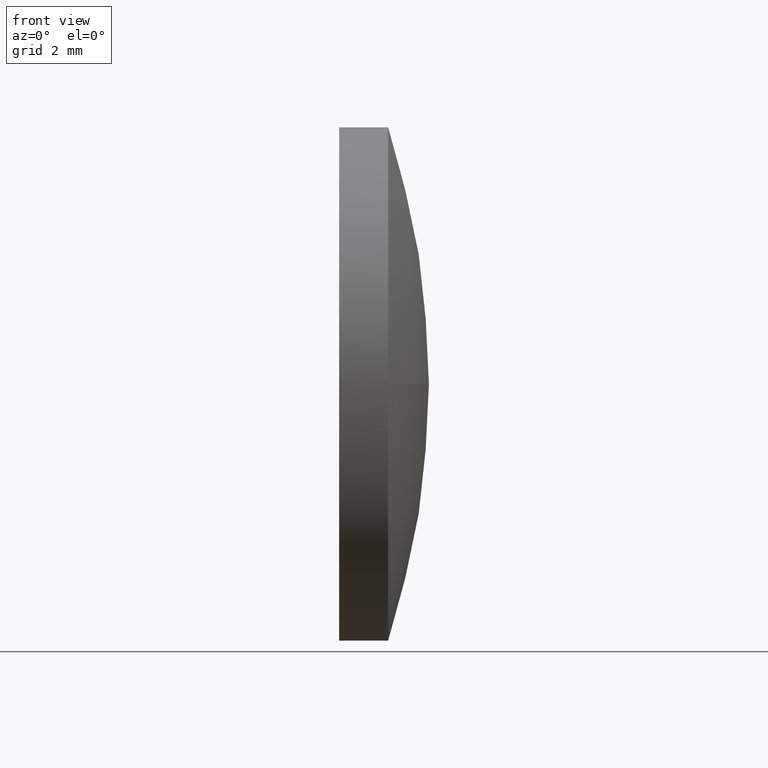
[diagram: clean part render]
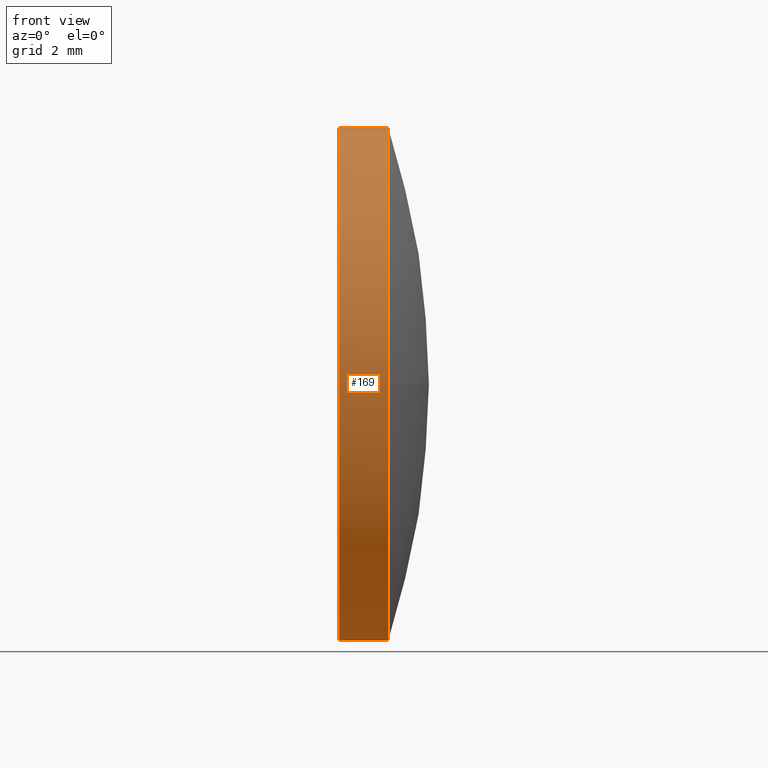
[diagram: same view with one face highlighted and labeled with its STEP entity id]
A machine part, front view. The second image highlights one B-rep face of the part: STEP entity #169.
In plain terms, the highlighted cylindrical surface (partial cylindrical patch) has radius 8 mm, axis along (-1, -0, -0).
Its self-contained STEP definition (entity closure, byte-faithful):
#10 = CARTESIAN_POINT ( 'NONE',  ( 504.0080972841085400, 80.19945685201562900, 0.0000000000000000000 ) ) ;
#11 = CARTESIAN_POINT ( 'NONE',  ( 500.8301248111171200, 80.19945685201562900, 8.000000000000007100 ) ) ;
#12 = CARTESIAN_POINT ( 'NONE',  ( 502.4780972841085100, 80.19945685201562900, 0.0000000000000000000 ) ) ;
#21 = DIRECTION ( 'NONE',  ( -1.000000000000000000, -0.0000000000000000000, -0.0000000000000000000 ) ) ;
#26 = ORIENTED_EDGE ( 'NONE', *, *, #174, .F. ) ;
#27 = VERTEX_POINT ( 'NONE', #112 ) ;
#28 = VECTOR ( 'NONE', #153, 1000.000000000000000 ) ;
#35 = CIRCLE ( 'NONE', #73, 8.000000000000007100 ) ;
#42 = EDGE_CURVE ( 'NONE', #170, #27, #35, .T. ) ;
#48 = ORIENTED_EDGE ( 'NONE', *, *, #42, .T. ) ;
#49 = DIRECTION ( 'NONE',  ( -1.000000000000000000, -0.0000000000000000000, -0.0000000000000000000 ) ) ;
#50 = AXIS2_PLACEMENT_3D ( 'NONE', #146, #49, #81 ) ;
#64 = CARTESIAN_POINT ( 'NONE',  ( 504.0080972841085400, 80.19945685201562900, 0.0000000000000000000 ) ) ;
#66 = EDGE_CURVE ( 'NONE', #89, #170, #78, .T. ) ;
#73 = AXIS2_PLACEMENT_3D ( 'NONE', #10, #21, #124 ) ;
#78 = CIRCLE ( 'NONE', #115, 8.000000000000007100 ) ;
#79 = EDGE_CURVE ( 'NONE', #27, #113, #181, .T. ) ;
#81 = DIRECTION ( 'NONE',  ( 0.0000000000000000000, 0.0000000000000000000, 1.000000000000000000 ) ) ;
#82 = DIRECTION ( 'NONE',  ( 0.0000000000000000000, 0.0000000000000000000, 1.000000000000000000 ) ) ;
#84 = EDGE_LOOP ( 'NONE', ( #26, #160, #48, #108, #133 ) ) ;
#89 = VERTEX_POINT ( 'NONE', #143 ) ;
#90 = FACE_OUTER_BOUND ( 'NONE', #84, .T. ) ;
#91 = CARTESIAN_POINT ( 'NONE',  ( 502.4780972841085100, 80.19945685201562900, -8.000000000000007100 ) ) ;
#99 = VERTEX_POINT ( 'NONE', #91 ) ;
#101 = AXIS2_PLACEMENT_3D ( 'NONE', #12, #154, #163 ) ;
#106 = CIRCLE ( 'NONE', #101, 8.000000000000007100 ) ;
#108 = ORIENTED_EDGE ( 'NONE', *, *, #79, .T. ) ;
#111 = CARTESIAN_POINT ( 'NONE',  ( 504.0080972841085400, 72.19945685201562900, 0.0000000000000000000 ) ) ;
#112 = CARTESIAN_POINT ( 'NONE',  ( 504.0080972841085400, 80.19945685201562900, 8.000000000000007100 ) ) ;
#113 = VERTEX_POINT ( 'NONE', #138 ) ;
#115 = AXIS2_PLACEMENT_3D ( 'NONE', #64, #166, #82 ) ;
#117 = CYLINDRICAL_SURFACE ( 'NONE', #50, 8.000000000000007100 ) ;
#124 = DIRECTION ( 'NONE',  ( 0.0000000000000000000, 0.0000000000000000000, 1.000000000000000000 ) ) ;
#133 = ORIENTED_EDGE ( 'NONE', *, *, #145, .F. ) ;
#138 = CARTESIAN_POINT ( 'NONE',  ( 502.4780972841085100, 80.19945685201562900, 8.000000000000007100 ) ) ;
#143 = CARTESIAN_POINT ( 'NONE',  ( 504.0080972841085400, 80.19945685201562900, -8.000000000000007100 ) ) ;
#144 = CARTESIAN_POINT ( 'NONE',  ( 500.8301248111171200, 80.19945685201562900, -8.000000000000007100 ) ) ;
#145 = EDGE_CURVE ( 'NONE', #99, #113, #106, .T. ) ;
#146 = CARTESIAN_POINT ( 'NONE',  ( 500.8301248111171200, 80.19945685201562900, 0.0000000000000000000 ) ) ;
#147 = LINE ( 'NONE', #144, #28 ) ;
#148 = VECTOR ( 'NONE', #168, 1000.000000000000000 ) ;
#153 = DIRECTION ( 'NONE',  ( -1.000000000000000000, -0.0000000000000000000, -0.0000000000000000000 ) ) ;
#154 = DIRECTION ( 'NONE',  ( -1.000000000000000000, -0.0000000000000000000, -0.0000000000000000000 ) ) ;
#160 = ORIENTED_EDGE ( 'NONE', *, *, #66, .T. ) ;
#163 = DIRECTION ( 'NONE',  ( 0.0000000000000000000, 0.0000000000000000000, 1.000000000000000000 ) ) ;
#166 = DIRECTION ( 'NONE',  ( -1.000000000000000000, -0.0000000000000000000, -0.0000000000000000000 ) ) ;
#168 = DIRECTION ( 'NONE',  ( -1.000000000000000000, -0.0000000000000000000, -0.0000000000000000000 ) ) ;
#169 = ADVANCED_FACE ( 'NONE', ( #90 ), #117, .T. ) ;
#170 = VERTEX_POINT ( 'NONE', #111 ) ;
#174 = EDGE_CURVE ( 'NONE', #89, #99, #147, .T. ) ;
#181 = LINE ( 'NONE', #11, #148 ) ;